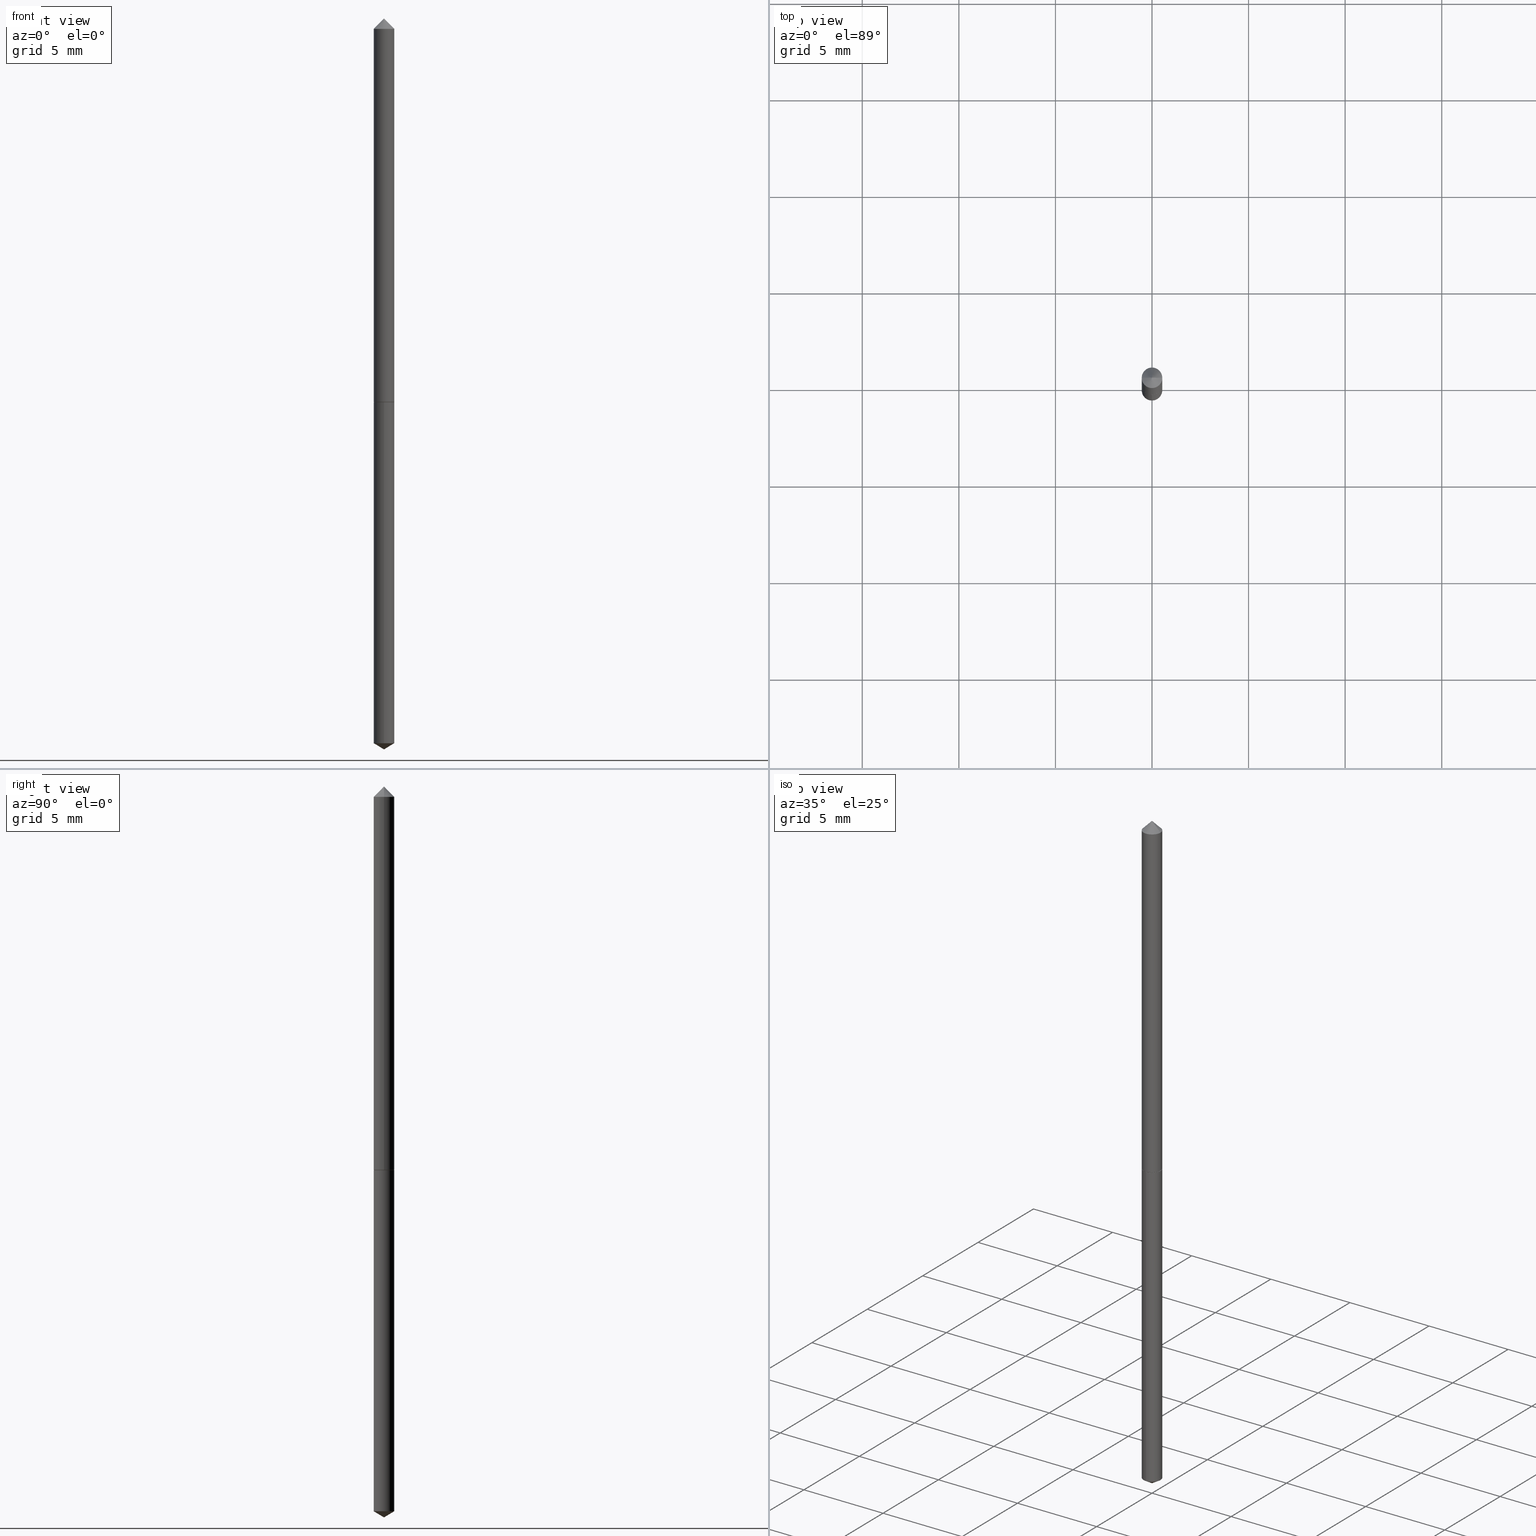
[diagram: canonical four-view strip — front | top / right | iso, engineering-drawing reading convention]
A machine part, canonical four-view strip (front | top / right | iso — engineering-drawing reading convention). The complete STEP part file that produces these views, byte-faithful:
ISO-10303-21;
HEADER;
FILE_DESCRIPTION (( 'STEP AP203' ),
    '1' );
FILE_NAME ('51058.STEP',
    '2024-04-22T18:20:39',
    ( '' ),
    ( '' ),
    'SwSTEP 2.0',
    'SolidWorks 2023',
    '' );
FILE_SCHEMA (( 'CONFIG_CONTROL_DESIGN' ));
ENDSEC;

DATA;
#1 = PERSON_AND_ORGANIZATION_ROLE ( 'creator' ) ;
#2 = CC_DESIGN_PERSON_AND_ORGANIZATION_ASSIGNMENT ( #196, #143, ( #130 ) ) ;
#3 = CIRCLE ( 'NONE', #35, 0.02100000000000000824 ) ;
#4 = DIRECTION ( 'NONE',  ( -2.445556924362238958E-29, 3.491355148598159938E-15, 1.000000000000000000 ) ) ;
#5 = EDGE_CURVE ( 'NONE', #267, #99, #325, .T. ) ;
#6 =( GEOMETRIC_REPRESENTATION_CONTEXT ( 3 ) GLOBAL_UNCERTAINTY_ASSIGNED_CONTEXT ( ( #187 ) ) GLOBAL_UNIT_ASSIGNED_CONTEXT ( ( #27, #57, #357 ) ) REPRESENTATION_CONTEXT ( 'NONE', 'WORKASPACE' ) );
#7 = DIRECTION ( 'NONE',  ( -2.445468806185136597E-29, 3.491481338843145583E-15, 1.000000000000000000 ) ) ;
#8 = ORIENTED_EDGE ( 'NONE', *, *, #126, .T. ) ;
#9 = DIRECTION ( 'NONE',  ( -0.7071067811864297781, 7.493145998869928175E-15, 0.7071067811866651454 ) ) ;
#10 = ORIENTED_EDGE ( 'NONE', *, *, #257, .F. ) ;
#11 = ORIENTED_EDGE ( 'NONE', *, *, #76, .T. ) ;
#12 = DIRECTION ( 'NONE',  ( 2.445468806185136597E-29, -3.491481338843145583E-15, -1.000000000000000000 ) ) ;
#13 = FACE_OUTER_BOUND ( 'NONE', #191, .T. ) ;
#14 = AXIS2_PLACEMENT_3D ( 'NONE', #321, #44, #297 ) ;
#15 = DIRECTION ( 'NONE',  ( 2.445556924362238958E-29, -3.491355148598159543E-15, -1.000000000000000000 ) ) ;
#16 = VECTOR ( 'NONE', #219, 39.37007874015748143 ) ;
#17 = ADVANCED_FACE ( 'NONE', ( #141 ), #248, .T. ) ;
#18 = DIRECTION ( 'NONE',  ( 1.000000000000000000, -6.982962677686276177E-15, 0.000000000000000000 ) ) ;
#19 = APPROVAL_DATE_TIME ( #242, #197 ) ;
#20 = DIRECTION ( 'NONE',  ( -2.445556924362238958E-29, 3.491355148598159938E-15, 1.000000000000000000 ) ) ;
#21 = ADVANCED_FACE ( 'NONE', ( #89 ), #106, .F. ) ;
#22 = CARTESIAN_POINT ( 'NONE',  ( 1.936811294498628434E-29, -2.765253220363771699E-15, -0.7920000000000001483 ) ) ;
#23 = CARTESIAN_POINT ( 'NONE',  ( -1.466422162313922235E-16, -0.02100000000000276992, -0.7920000000000000373 ) ) ;
#24 = AXIS2_PLACEMENT_3D ( 'NONE', #163, #138, #328 ) ;
#25 = LOCAL_TIME ( 14, 20, 39.00000000000000000, #307 ) ;
#26 = VECTOR ( 'NONE', #98, 39.37007874015748143 ) ;
#27 =( CONVERSION_BASED_UNIT ( 'INCH', #301 ) LENGTH_UNIT ( ) NAMED_UNIT ( #117 ) );
#28 = CARTESIAN_POINT ( 'NONE',  ( 3.668336610488116959E-29, -5.237032722897240104E-15, -1.500000000000000222 ) ) ;
#29 = DIRECTION ( 'NONE',  ( 0.7071067811864297781, -2.468850131081024071E-15, 0.7071067811866651454 ) ) ;
#30 = DATE_TIME_ROLE ( 'creation_date' ) ;
#31 = VECTOR ( 'NONE', #249, 39.37007874015748143 ) ;
#32 = DIRECTION ( 'NONE',  ( -2.445556924362238958E-29, 3.491355148598159938E-15, 1.000000000000000000 ) ) ;
#33 = CIRCLE ( 'NONE', #226, 0.02100000000000000477 ) ;
#34 = APPLICATION_PROTOCOL_DEFINITION ( 'international standard', 'config_control_design', 1994, #79 ) ;
#35 = AXIS2_PLACEMENT_3D ( 'NONE', #134, #157, #263 ) ;
#36 = ADVANCED_FACE ( 'NONE', ( #77 ), #114, .T. ) ;
#37 = DIRECTION ( 'NONE',  ( 0.000000000000000000, 0.000000000000000000, 1.000000000000000000 ) ) ;
#38 = VERTEX_POINT ( 'NONE', #190 ) ;
#39 = DIRECTION ( 'NONE',  ( -2.445556924362238958E-29, 3.491355148598159938E-15, 1.000000000000000000 ) ) ;
#40 = APPROVAL ( #201, 'UNSPECIFIED' ) ;
#41 = APPROVAL_STATUS ( 'not_yet_approved' ) ;
#42 = ORIENTED_EDGE ( 'NONE', *, *, #349, .F. ) ;
#43 = ORIENTED_EDGE ( 'NONE', *, *, #90, .F. ) ;
#44 = DIRECTION ( 'NONE',  ( -2.445468806185136597E-29, 3.491481338843145583E-15, 1.000000000000000000 ) ) ;
#45 = CALENDAR_DATE ( 2024, 22, 4 ) ;
#46 = DIRECTION ( 'NONE',  ( -6.982962677686266711E-15, -1.000000000000000000, 3.468864327941518878E-15 ) ) ;
#47 = EDGE_LOOP ( 'NONE', ( #189, #104 ) ) ;
#48 = SECURITY_CLASSIFICATION ( '', '', #94 ) ;
#49 = AXIS2_PLACEMENT_3D ( 'NONE', #284, #12, #259 ) ;
#50 = DIRECTION ( 'NONE',  ( 0.7071067811865453523, -7.319954787623248157E-15, -0.7071067811865496822 ) ) ;
#51 = EDGE_CURVE ( 'NONE', #267, #346, #294, .T. ) ;
#52 = ORIENTED_EDGE ( 'NONE', *, *, #69, .F. ) ;
#53 = APPROVAL ( #311, 'UNSPECIFIED' ) ;
#54 = PERSON ( 'UNSPECIFIED', 'UNSPECIFIED', 'UNSPECIFIED', ('UNSPECIFIED'), ('UNSPECIFIED'), ('UNSPECIFIED') ) ;
#55 = FACE_OUTER_BOUND ( 'NONE', #355, .T. ) ;
#56 = DIRECTION ( 'NONE',  ( 1.000000000000000000, -6.982962677686276177E-15, 0.000000000000000000 ) ) ;
#57 =( NAMED_UNIT ( * ) PLANE_ANGLE_UNIT ( ) SI_UNIT ( $, .RADIAN. ) );
#58 = DIRECTION ( 'NONE',  ( -6.982962677686265133E-15, -1.000000000000000000, 0.000000000000000000 ) ) ;
#59 =( LENGTH_UNIT ( ) NAMED_UNIT ( * ) SI_UNIT ( $, .METRE. ) );
#60 = EDGE_CURVE ( 'NONE', #292, #238, #86, .T. ) ;
#61 = CARTESIAN_POINT ( 'NONE',  ( 0.02100000000000010192, -2.910149695925762806E-15, -0.7915000000000002034 ) ) ;
#62 = CONICAL_SURFACE ( 'NONE', #250, 0.02100000000000000824, 0.7853981633974452814 ) ;
#63 = AXIS2_PLACEMENT_3D ( 'NONE', #84, #225, #222 ) ;
#64 = ORIENTED_EDGE ( 'NONE', *, *, #204, .T. ) ;
#65 = ORIENTED_EDGE ( 'NONE', *, *, #60, .T. ) ;
#66 = MANIFOLD_SOLID_BREP ( 'Body-Move/Copy2[1]', #97 ) ;
#67 = LOCAL_TIME ( 14, 20, 39.00000000000000000, #247 ) ;
#68 = CARTESIAN_POINT ( 'NONE',  ( 0.000000000000000000, 0.000000000000000000, 0.000000000000000000 ) ) ;
#69 = EDGE_CURVE ( 'NONE', #38, #346, #109, .T. ) ;
#70 = DATE_TIME_ROLE ( 'classification_date' ) ;
#71 = EDGE_LOOP ( 'NONE', ( #356, #288 ) ) ;
#72 = ORGANIZATION ( 'UNSPECIFIED', 'UNSPECIFIED', '' ) ;
#73 = PERSON_AND_ORGANIZATION_ROLE ( 'design_owner' ) ;
#74 = ORIENTED_EDGE ( 'NONE', *, *, #51, .F. ) ;
#75 = CARTESIAN_POINT ( 'NONE',  ( -0.02100000000000000824, 3.753342439256262871E-17, -0.03125000000000020817 ) ) ;
#76 = EDGE_CURVE ( 'NONE', #348, #165, #326, .T. ) ;
#77 = FACE_OUTER_BOUND ( 'NONE', #185, .T. ) ;
#78 = ORIENTED_EDGE ( 'NONE', *, *, #5, .T. ) ;
#79 = APPLICATION_CONTEXT ( 'configuration controlled 3d designs of mechanical parts and assemblies' ) ;
#80 = DIRECTION ( 'NONE',  ( -2.445556924362238958E-29, 3.491355148598159938E-15, 1.000000000000000000 ) ) ;
#81 = CARTESIAN_POINT ( 'NONE',  ( 1.936811294498628434E-29, -2.765253220363771699E-15, -0.7920000000000001483 ) ) ;
#82 = CIRCLE ( 'NONE', #286, 0.02100000000000010192 ) ;
#83 = DIRECTION ( 'NONE',  ( 1.000000000000000000, -6.982962677686276966E-15, 0.000000000000000000 ) ) ;
#84 = CARTESIAN_POINT ( 'NONE',  ( 1.936811294498628714E-29, -2.765253220363772093E-15, -0.7920000000000003704 ) ) ;
#85 = CARTESIAN_POINT ( 'NONE',  ( 0.02100000000000000824, -2.557510080702606759E-16, -0.03125000000000020817 ) ) ;
#86 = LINE ( 'NONE', #28, #31 ) ;
#87 = DATE_AND_TIME ( #306, #351 ) ;
#88 = PERSON_AND_ORGANIZATION ( #54, #72 ) ;
#89 = FACE_OUTER_BOUND ( 'NONE', #47, .T. ) ;
#90 = EDGE_CURVE ( 'NONE', #186, #99, #221, .T. ) ;
#91 = COORDINATED_UNIVERSAL_TIME_OFFSET ( 5, 0, .BEHIND. ) ;
#92 = EDGE_CURVE ( 'NONE', #348, #238, #233, .T. ) ;
#93 = EDGE_LOOP ( 'NONE', ( #262, #315, #295 ) ) ;
#94 = SECURITY_CLASSIFICATION_LEVEL ( 'unclassified' ) ;
#95 = FACE_OUTER_BOUND ( 'NONE', #93, .T. ) ;
#96 = CC_DESIGN_APPROVAL ( #53, ( #48 ) ) ;
#97 = CLOSED_SHELL ( 'NONE', ( #161, #227, #120, #17, #231 ) ) ;
#98 = DIRECTION ( 'NONE',  ( -5.985567269335977567E-15, -0.8571673007021154422, 0.5150380749100489375 ) ) ;
#99 = VERTEX_POINT ( 'NONE', #168 ) ;
#100 = CARTESIAN_POINT ( 'NONE',  ( -0.02050000000000009454, -2.616942732358839831E-15, -0.7920000000000003704 ) ) ;
#101 = ORIENTED_EDGE ( 'NONE', *, *, #92, .T. ) ;
#102 = CYLINDRICAL_SURFACE ( 'NONE', #14, 0.02100000000000005335 ) ;
#103 = VECTOR ( 'NONE', #113, 39.37007874015748143 ) ;
#104 = ORIENTED_EDGE ( 'NONE', *, *, #172, .F. ) ;
#105 = CARTESIAN_POINT ( 'NONE',  ( -0.02100000000000010192, -2.614293505184728629E-15, -0.7915000000000002034 ) ) ;
#106 = PLANE ( 'NONE',  #312 ) ;
#107 = ORIENTED_EDGE ( 'NONE', *, *, #274, .F. ) ;
#108 = APPROVAL_ROLE ( '' ) ;
#109 = LINE ( 'NONE', #360, #16 ) ;
#110 = DIRECTION ( 'NONE',  ( -6.982962677686265133E-15, -1.000000000000000000, 6.504399984914910847E-15 ) ) ;
#111 = DIRECTION ( 'NONE',  ( 1.000000000000000000, -6.982962677686267499E-15, 4.876176775795936353E-29 ) ) ;
#112 = AXIS2_PLACEMENT_3D ( 'NONE', #68, #37, #207 ) ;
#113 = DIRECTION ( 'NONE',  ( -2.445556924362238958E-29, 3.491355148598159543E-15, 1.000000000000000000 ) ) ;
#114 = CONICAL_SURFACE ( 'NONE', #194, 0.02100000000000010192, 0.7853981633972818566 ) ;
#115 = EDGE_CURVE ( 'NONE', #186, #38, #82, .T. ) ;
#116 = DIRECTION ( 'NONE',  ( -2.445556924362238958E-29, 3.491355148598159543E-15, 1.000000000000000000 ) ) ;
#117 = DIMENSIONAL_EXPONENTS ( 1.000000000000000000, 0.000000000000000000, 0.000000000000000000, 0.000000000000000000, 0.000000000000000000, 0.000000000000000000, 0.000000000000000000 ) ;
#118 = DIRECTION ( 'NONE',  ( -2.438088387897960049E-29, 3.491481338843145188E-15, 1.000000000000000000 ) ) ;
#119 = PRODUCT_DEFINITION_FORMATION_WITH_SPECIFIED_SOURCE ( 'ANY', '', #174, .NOT_KNOWN. ) ;
#120 = ADVANCED_FACE ( 'NONE', ( #95 ), #145, .T. ) ;
#121 = CARTESIAN_POINT ( 'NONE',  ( 3.637407381150866081E-29, -5.193078491438802462E-15, -1.487381927000421600 ) ) ;
#122 = VECTOR ( 'NONE', #50, 39.37007874015748143 ) ;
#123 = CARTESIAN_POINT ( 'NONE',  ( -9.261350307873161737E-28, 1.322177944445925115E-13, 37.87007874015748143 ) ) ;
#124 = ADVANCED_BREP_SHAPE_REPRESENTATION ( '51058', ( #66, #308, #112 ), #6 ) ;
#125 = DIRECTION ( 'NONE',  ( -6.982962677686266711E-15, -1.000000000000000000, 3.468864327941518878E-15 ) ) ;
#126 = EDGE_CURVE ( 'NONE', #38, #186, #327, .T. ) ;
#127 = CARTESIAN_POINT ( 'NONE',  ( 1.492139745096575085E-16, 0.02099999999999723616, -0.7920000000000003704 ) ) ;
#128 = ORIENTED_EDGE ( 'NONE', *, *, #115, .T. ) ;
#129 = DIRECTION ( 'NONE',  ( 1.000000000000000000, -6.982962677686276177E-15, 0.000000000000000000 ) ) ;
#130 = PRODUCT_DEFINITION ( 'UNKNOWN', '', #119, #246 ) ;
#131 = FACE_OUTER_BOUND ( 'NONE', #162, .T. ) ;
#132 = ORIENTED_EDGE ( 'NONE', *, *, #313, .F. ) ;
#133 = PERSON_AND_ORGANIZATION ( #54, #72 ) ;
#134 = CARTESIAN_POINT ( 'NONE',  ( 7.642090019328602662E-31, -1.091087918388490267E-16, -0.03125000000000020817 ) ) ;
#135 = VERTEX_POINT ( 'NONE', #100 ) ;
#136 = ORIENTED_EDGE ( 'NONE', *, *, #126, .F. ) ;
#137 = LINE ( 'NONE', #105, #275 ) ;
#138 = DIRECTION ( 'NONE',  ( -2.445468806185136597E-29, 3.491481338843145583E-15, 1.000000000000000000 ) ) ;
#139 = CARTESIAN_POINT ( 'NONE',  ( 1.492139745096404000E-16, 0.02099999999999723616, -0.7920000000000003704 ) ) ;
#140 = APPLICATION_CONTEXT ( 'configuration controlled 3d designs of mechanical parts and assemblies' ) ;
#141 = FACE_OUTER_BOUND ( 'NONE', #211, .T. ) ;
#142 = CARTESIAN_POINT ( 'NONE',  ( 0.02050000000000009454, -2.908403955256341697E-15, -0.7920000000000003704 ) ) ;
#143 = PERSON_AND_ORGANIZATION_ROLE ( 'creator' ) ;
#144 = AXIS2_PLACEMENT_3D ( 'NONE', #354, #293, #111 ) ;
#145 = CONICAL_SURFACE ( 'NONE', #181, 65.52281426576985268, 1.029744258676664082 ) ;
#146 = APPROVAL_ROLE ( '' ) ;
#147 = CARTESIAN_POINT ( 'NONE',  ( -0.02100000000000010192, -2.614293505184728629E-15, -0.7915000000000002034 ) ) ;
#148 = CALENDAR_DATE ( 2024, 22, 4 ) ;
#149 = DIRECTION ( 'NONE',  ( -6.982962677686265133E-15, -1.000000000000000000, 0.000000000000000000 ) ) ;
#150 = CIRCLE ( 'NONE', #24, 0.02100000000000000824 ) ;
#151 = CLOSED_SHELL ( 'NONE', ( #300, #279, #244, #21, #36, #335, #153 ) ) ;
#152 = APPROVAL_PERSON_ORGANIZATION ( #158, #197, #188 ) ;
#153 = ADVANCED_FACE ( 'NONE', ( #318 ), #209, .T. ) ;
#154 = PERSON_AND_ORGANIZATION ( #54, #72 ) ;
#155 = VERTEX_POINT ( 'NONE', #127 ) ;
#156 = VECTOR ( 'NONE', #29, 39.37007874015748854 ) ;
#157 = DIRECTION ( 'NONE',  ( -2.445468806185136597E-29, 3.491481338843145583E-15, 1.000000000000000000 ) ) ;
#158 = PERSON_AND_ORGANIZATION ( #54, #72 ) ;
#159 = ORIENTED_EDGE ( 'NONE', *, *, #115, .F. ) ;
#160 = PLANE ( 'NONE',  #192 ) ;
#161 = ADVANCED_FACE ( 'NONE', ( #352 ), #342, .T. ) ;
#162 = EDGE_LOOP ( 'NONE', ( #265, #65, #350 ) ) ;
#163 = CARTESIAN_POINT ( 'NONE',  ( 7.642090019328602662E-31, -1.091087918388490267E-16, -0.03125000000000020817 ) ) ;
#164 = VECTOR ( 'NONE', #116, 39.37007874015748143 ) ;
#165 = VERTEX_POINT ( 'NONE', #180 ) ;
#166 = DIRECTION ( 'NONE',  ( -6.982962677686265133E-15, -1.000000000000000000, 6.504399984914910847E-15 ) ) ;
#167 = CARTESIAN_POINT ( 'NONE',  ( 1.936811294498628434E-29, -2.765253220363771699E-15, -0.7920000000000001483 ) ) ;
#168 = CARTESIAN_POINT ( 'NONE',  ( -0.02100000000000000824, -1.287094161256977096E-15, -0.03125000000000020817 ) ) ;
#169 = LOCAL_TIME ( 14, 20, 39.00000000000000000, #199 ) ;
#170 = AXIS2_PLACEMENT_3D ( 'NONE', #121, #332, #149 ) ;
#171 = DIRECTION ( 'NONE',  ( -2.445468806185136877E-29, 3.491481338843145188E-15, 1.000000000000000000 ) ) ;
#172 = EDGE_CURVE ( 'NONE', #135, #320, #261, .T. ) ;
#173 = CC_DESIGN_DATE_AND_TIME_ASSIGNMENT ( #344, #70, ( #48 ) ) ;
#174 = PRODUCT ( '51058', '51058', '', ( #236 ) ) ;
#175 = AXIS2_PLACEMENT_3D ( 'NONE', #210, #7, #129 ) ;
#176 = EDGE_CURVE ( 'NONE', #320, #38, #252, .T. ) ;
#177 = APPROVAL_DATE_TIME ( #202, #40 ) ;
#178 = CONICAL_SURFACE ( 'NONE', #359, 65.52281426576985268, 1.029744258676664082 ) ;
#179 = CC_DESIGN_PERSON_AND_ORGANIZATION_ASSIGNMENT ( #255, #1, ( #119 ) ) ;
#180 = CARTESIAN_POINT ( 'NONE',  ( -1.466422162313922235E-16, -0.02100000000000276992, -0.7920000000000000373 ) ) ;
#181 = AXIS2_PLACEMENT_3D ( 'NONE', #123, #4, #125 ) ;
#182 = ORIENTED_EDGE ( 'NONE', *, *, #268, .F. ) ;
#183 = DIRECTION ( 'NONE',  ( -2.445556924362238958E-29, 3.491355148598159938E-15, 1.000000000000000000 ) ) ;
#184 = CIRCLE ( 'NONE', #205, 0.02100000000000000477 ) ;
#185 = EDGE_LOOP ( 'NONE', ( #343, #353, #304, #159 ) ) ;
#186 = VERTEX_POINT ( 'NONE', #147 ) ;
#187 = UNCERTAINTY_MEASURE_WITH_UNIT (LENGTH_MEASURE( 1.000000000000000082E-05 ), #27, 'distance_accuracy_value', 'NONE');
#188 = APPROVAL_ROLE ( '' ) ;
#189 = ORIENTED_EDGE ( 'NONE', *, *, #364, .F. ) ;
#190 = CARTESIAN_POINT ( 'NONE',  ( 0.02100000000000010192, -2.910149695925762806E-15, -0.7915000000000002034 ) ) ;
#191 = EDGE_LOOP ( 'NONE', ( #43, #128, #287, #107 ) ) ;
#192 = AXIS2_PLACEMENT_3D ( 'NONE', #81, #15, #347 ) ;
#193 = CARTESIAN_POINT ( 'NONE',  ( -1.466422162313752630E-16, -0.02100000000000519854, -1.487381927000421600 ) ) ;
#194 = AXIS2_PLACEMENT_3D ( 'NONE', #223, #278, #56 ) ;
#195 = LINE ( 'NONE', #139, #103 ) ;
#196 = PERSON_AND_ORGANIZATION ( #54, #72 ) ;
#197 = APPROVAL ( #41, 'UNSPECIFIED' ) ;
#198 = CARTESIAN_POINT ( 'NONE',  ( 1.936811294498628714E-29, -2.765253220363772093E-15, -0.7920000000000003704 ) ) ;
#199 = COORDINATED_UNIVERSAL_TIME_OFFSET ( 5, 0, .BEHIND. ) ;
#200 = CARTESIAN_POINT ( 'NONE',  ( -0.02100000000000005335, 1.492139745096214181E-16, -1.032976368953532787E-30 ) ) ;
#201 = APPROVAL_STATUS ( 'not_yet_approved' ) ;
#202 = DATE_AND_TIME ( #148, #25 ) ;
#203 = APPROVAL_DATE_TIME ( #87, #53 ) ;
#204 = EDGE_CURVE ( 'NONE', #238, #348, #361, .T. ) ;
#205 = AXIS2_PLACEMENT_3D ( 'NONE', #298, #183, #166 ) ;
#206 = ORIENTED_EDGE ( 'NONE', *, *, #349, .T. ) ;
#207 = DIRECTION ( 'NONE',  ( 1.000000000000000000, 0.000000000000000000, 0.000000000000000000 ) ) ;
#208 = CC_DESIGN_APPROVAL ( #197, ( #130 ) ) ;
#209 = CONICAL_SURFACE ( 'NONE', #49, 0.02100000000000000824, 0.7853981633974452814 ) ;
#210 = CARTESIAN_POINT ( 'NONE',  ( 1.935588560095536193E-29, -2.763507479694350590E-15, -0.7915000000000002034 ) ) ;
#211 = EDGE_LOOP ( 'NONE', ( #10, #64, #11, #132 ) ) ;
#212 = CONICAL_SURFACE ( 'NONE', #229, 0.02100000000000010192, 0.7853981633972818566 ) ;
#213 = CARTESIAN_POINT ( 'NONE',  ( 1.936811294498628434E-29, -2.765253220363771699E-15, -0.7920000000000001483 ) ) ;
#214 = ORIENTED_EDGE ( 'NONE', *, *, #176, .F. ) ;
#215 = FACE_OUTER_BOUND ( 'NONE', #310, .T. ) ;
#216 = ORIENTED_EDGE ( 'NONE', *, *, #235, .T. ) ;
#217 = CARTESIAN_POINT ( 'NONE',  ( 1.935588560095536193E-29, -2.763507479694350590E-15, -0.7915000000000002034 ) ) ;
#218 = CARTESIAN_POINT ( 'NONE',  ( -1.748189418683981032E-29, -8.042383978856665644E-15, -0.7920000000000001483 ) ) ;
#219 = DIRECTION ( 'NONE',  ( -2.445468806185136877E-29, 3.491481338843145188E-15, 1.000000000000000000 ) ) ;
#220 = CARTESIAN_POINT ( 'NONE',  ( 2.506605526339781470E-31, -3.578768372314248100E-17, -0.01025000000000006635 ) ) ;
#221 = LINE ( 'NONE', #200, #363 ) ;
#222 = DIRECTION ( 'NONE',  ( 1.000000000000000000, -6.982962677686276966E-15, 0.000000000000000000 ) ) ;
#223 = CARTESIAN_POINT ( 'NONE',  ( 1.935588560095536193E-29, -2.763507479694350590E-15, -0.7915000000000002034 ) ) ;
#224 = EDGE_CURVE ( 'NONE', #292, #348, #258, .T. ) ;
#225 = DIRECTION ( 'NONE',  ( -2.445468806185136597E-29, 3.491481338843145583E-15, 1.000000000000000000 ) ) ;
#226 = AXIS2_PLACEMENT_3D ( 'NONE', #22, #80, #276 ) ;
#227 = ADVANCED_FACE ( 'NONE', ( #131 ), #178, .T. ) ;
#228 = APPROVAL_PERSON_ORGANIZATION ( #133, #53, #108 ) ;
#229 = AXIS2_PLACEMENT_3D ( 'NONE', #217, #329, #18 ) ;
#230 = PERSON_AND_ORGANIZATION ( #54, #72 ) ;
#231 = ADVANCED_FACE ( 'NONE', ( #241 ), #160, .F. ) ;
#232 = AXIS2_PLACEMENT_3D ( 'NONE', #198, #245, #83 ) ;
#233 = CIRCLE ( 'NONE', #270, 0.02100000000000000477 ) ;
#234 = ORIENTED_EDGE ( 'NONE', *, *, #51, .T. ) ;
#235 = EDGE_CURVE ( 'NONE', #135, #186, #137, .T. ) ;
#236 = MECHANICAL_CONTEXT ( 'NONE', #140, 'mechanical' ) ;
#237 = EDGE_LOOP ( 'NONE', ( #324, #216, #136, #214 ) ) ;
#238 = VERTEX_POINT ( 'NONE', #266 ) ;
#239 = EDGE_LOOP ( 'NONE', ( #101, #289, #182, #336 ) ) ;
#240 = CYLINDRICAL_SURFACE ( 'NONE', #144, 0.02100000000000005335 ) ;
#241 = FACE_OUTER_BOUND ( 'NONE', #71, .T. ) ;
#242 = DATE_AND_TIME ( #291, #67 ) ;
#243 = ORIENTED_EDGE ( 'NONE', *, *, #274, .T. ) ;
#244 = ADVANCED_FACE ( 'NONE', ( #272 ), #212, .T. ) ;
#245 = DIRECTION ( 'NONE',  ( -2.445468806185136597E-29, 3.491481338843145583E-15, 1.000000000000000000 ) ) ;
#246 = DESIGN_CONTEXT ( 'detailed design', #79, 'design' ) ;
#247 = COORDINATED_UNIVERSAL_TIME_OFFSET ( 5, 0, .BEHIND. ) ;
#248 = CYLINDRICAL_SURFACE ( 'NONE', #340, 0.02100000000000000477 ) ;
#249 = DIRECTION ( 'NONE',  ( 6.090539988449815512E-15, 0.8571673007021189949, 0.5150380749100429423 ) ) ;
#250 = AXIS2_PLACEMENT_3D ( 'NONE', #290, #303, #323 ) ;
#251 = CARTESIAN_POINT ( 'NONE',  ( 3.668335386543358857E-29, -5.237032722897240104E-15, -1.500000000000000222 ) ) ;
#252 = LINE ( 'NONE', #61, #156 ) ;
#253 = DIRECTION ( 'NONE',  ( 1.000000000000000000, -6.982962677686265922E-15, 4.876176775795935793E-29 ) ) ;
#254 = LOCAL_TIME ( 14, 20, 39.00000000000000000, #314 ) ;
#255 = PERSON_AND_ORGANIZATION ( #54, #72 ) ;
#256 = DIRECTION ( 'NONE',  ( -6.982962677686265133E-15, -1.000000000000000000, 6.504399984914910847E-15 ) ) ;
#257 = EDGE_CURVE ( 'NONE', #238, #155, #195, .T. ) ;
#258 = LINE ( 'NONE', #339, #26 ) ;
#259 = DIRECTION ( 'NONE',  ( -1.000000000000000000, 6.982962677686265922E-15, 0.000000000000000000 ) ) ;
#260 = APPLICATION_PROTOCOL_DEFINITION ( 'international standard', 'config_control_design', 1994, #140 ) ;
#261 = CIRCLE ( 'NONE', #63, 0.02050000000000009454 ) ;
#262 = ORIENTED_EDGE ( 'NONE', *, *, #60, .F. ) ;
#263 = DIRECTION ( 'NONE',  ( 1.000000000000000000, -6.982962677686265922E-15, 0.000000000000000000 ) ) ;
#264 = ORIENTED_EDGE ( 'NONE', *, *, #90, .T. ) ;
#265 = ORIENTED_EDGE ( 'NONE', *, *, #224, .F. ) ;
#266 = CARTESIAN_POINT ( 'NONE',  ( 1.492139745096574345E-16, 0.02099999999999481101, -1.487381927000421600 ) ) ;
#267 = VERTEX_POINT ( 'NONE', #220 ) ;
#268 = EDGE_CURVE ( 'NONE', #165, #155, #184, .T. ) ;
#269 = CARTESIAN_POINT ( 'NONE',  ( 1.935588560095536193E-29, -2.763507479694350590E-15, -0.7915000000000002034 ) ) ;
#270 = AXIS2_PLACEMENT_3D ( 'NONE', #331, #302, #58 ) ;
#271 = PERSON_AND_ORGANIZATION_ROLE ( 'classification_officer' ) ;
#272 = FACE_OUTER_BOUND ( 'NONE', #237, .T. ) ;
#273 = ORIENTED_EDGE ( 'NONE', *, *, #5, .F. ) ;
#274 = EDGE_CURVE ( 'NONE', #99, #346, #3, .T. ) ;
#275 = VECTOR ( 'NONE', #9, 39.37007874015748854 ) ;
#276 = DIRECTION ( 'NONE',  ( -6.982962677686265133E-15, -1.000000000000000000, 6.504399984914910847E-15 ) ) ;
#277 = DATE_AND_TIME ( #334, #169 ) ;
#278 = DIRECTION ( 'NONE',  ( -2.445468806185136597E-29, 3.491481338843145583E-15, 1.000000000000000000 ) ) ;
#279 = ADVANCED_FACE ( 'NONE', ( #55 ), #102, .T. ) ;
#280 = CC_DESIGN_SECURITY_CLASSIFICATION ( #48, ( #119 ) ) ;
#281 = PERSON_AND_ORGANIZATION ( #54, #72 ) ;
#282 = DIRECTION ( 'NONE',  ( -2.445468806185136597E-29, 3.491481338843145583E-15, 1.000000000000000000 ) ) ;
#283 = EDGE_LOOP ( 'NONE', ( #74, #78, #243 ) ) ;
#284 = CARTESIAN_POINT ( 'NONE',  ( 7.642090019328602662E-31, -1.091087918388490267E-16, -0.03125000000000020817 ) ) ;
#285 = CIRCLE ( 'NONE', #232, 0.02050000000000009454 ) ;
#286 = AXIS2_PLACEMENT_3D ( 'NONE', #269, #282, #319 ) ;
#287 = ORIENTED_EDGE ( 'NONE', *, *, #69, .T. ) ;
#288 = ORIENTED_EDGE ( 'NONE', *, *, #313, .T. ) ;
#289 = ORIENTED_EDGE ( 'NONE', *, *, #257, .T. ) ;
#290 = CARTESIAN_POINT ( 'NONE',  ( 7.642090019328602662E-31, -1.091087918388490267E-16, -0.03125000000000020817 ) ) ;
#291 = CALENDAR_DATE ( 2024, 22, 4 ) ;
#292 = VERTEX_POINT ( 'NONE', #251 ) ;
#293 = DIRECTION ( 'NONE',  ( -2.445468806185136597E-29, 3.491481338843145583E-15, 1.000000000000000000 ) ) ;
#294 = LINE ( 'NONE', #358, #122 ) ;
#295 = ORIENTED_EDGE ( 'NONE', *, *, #204, .F. ) ;
#296 = VECTOR ( 'NONE', #299, 39.37007874015748143 ) ;
#297 = DIRECTION ( 'NONE',  ( 1.000000000000000000, -6.982962677686267499E-15, 4.876176775795936353E-29 ) ) ;
#298 = CARTESIAN_POINT ( 'NONE',  ( 1.936811294498628434E-29, -2.765253220363771699E-15, -0.7920000000000001483 ) ) ;
#299 = DIRECTION ( 'NONE',  ( -0.7071067811865453523, 2.468850131082234184E-15, -0.7071067811865496822 ) ) ;
#300 = ADVANCED_FACE ( 'NONE', ( #215 ), #62, .T. ) ;
#301 = LENGTH_MEASURE_WITH_UNIT ( LENGTH_MEASURE( 0.02539999999999999897 ), #59 );
#302 = DIRECTION ( 'NONE',  ( -2.445556924362238958E-29, 3.491355148598159938E-15, 1.000000000000000000 ) ) ;
#303 = DIRECTION ( 'NONE',  ( 2.445468806185136597E-29, -3.491481338843145583E-15, -1.000000000000000000 ) ) ;
#304 = ORIENTED_EDGE ( 'NONE', *, *, #176, .T. ) ;
#305 = CC_DESIGN_APPROVAL ( #40, ( #119 ) ) ;
#306 = CALENDAR_DATE ( 2024, 22, 4 ) ;
#307 = COORDINATED_UNIVERSAL_TIME_OFFSET ( 5, 0, .BEHIND. ) ;
#308 = MANIFOLD_SOLID_BREP ( 'Body-Move/Copy2[2]', #151 ) ;
#309 = CC_DESIGN_PERSON_AND_ORGANIZATION_ASSIGNMENT ( #230, #337, ( #119 ) ) ;
#310 = EDGE_LOOP ( 'NONE', ( #273, #234, #206 ) ) ;
#311 = APPROVAL_STATUS ( 'not_yet_approved' ) ;
#312 = AXIS2_PLACEMENT_3D ( 'NONE', #218, #118, #253 ) ;
#313 = EDGE_CURVE ( 'NONE', #155, #165, #33, .T. ) ;
#314 = COORDINATED_UNIVERSAL_TIME_OFFSET ( 5, 0, .BEHIND. ) ;
#315 = ORIENTED_EDGE ( 'NONE', *, *, #224, .T. ) ;
#316 = CC_DESIGN_PERSON_AND_ORGANIZATION_ASSIGNMENT ( #281, #73, ( #174 ) ) ;
#317 = PRODUCT_RELATED_PRODUCT_CATEGORY ( 'detail', '', ( #174 ) ) ;
#318 = FACE_OUTER_BOUND ( 'NONE', #283, .T. ) ;
#319 = DIRECTION ( 'NONE',  ( 1.000000000000000000, -6.982962677686276177E-15, 0.000000000000000000 ) ) ;
#320 = VERTEX_POINT ( 'NONE', #142 ) ;
#321 = CARTESIAN_POINT ( 'NONE',  ( 0.000000000000000000, 0.000000000000000000, 0.000000000000000000 ) ) ;
#322 = AXIS2_PLACEMENT_3D ( 'NONE', #213, #32, #256 ) ;
#323 = DIRECTION ( 'NONE',  ( -1.000000000000000000, 6.982962677686265922E-15, 0.000000000000000000 ) ) ;
#324 = ORIENTED_EDGE ( 'NONE', *, *, #364, .T. ) ;
#325 = LINE ( 'NONE', #75, #296 ) ;
#326 = LINE ( 'NONE', #23, #164 ) ;
#327 = CIRCLE ( 'NONE', #175, 0.02100000000000010192 ) ;
#328 = DIRECTION ( 'NONE',  ( 1.000000000000000000, -6.982962677686265922E-15, 0.000000000000000000 ) ) ;
#329 = DIRECTION ( 'NONE',  ( -2.445468806185136597E-29, 3.491481338843145583E-15, 1.000000000000000000 ) ) ;
#330 = SHAPE_DEFINITION_REPRESENTATION ( #333, #124 ) ;
#331 = CARTESIAN_POINT ( 'NONE',  ( 3.637407381150866081E-29, -5.193078491438802462E-15, -1.487381927000421600 ) ) ;
#332 = DIRECTION ( 'NONE',  ( -2.445556924362238958E-29, 3.491355148598159938E-15, 1.000000000000000000 ) ) ;
#333 = PRODUCT_DEFINITION_SHAPE ( 'NONE', 'NONE',  #130 ) ;
#334 = CALENDAR_DATE ( 2024, 22, 4 ) ;
#335 = ADVANCED_FACE ( 'NONE', ( #13 ), #240, .T. ) ;
#336 = ORIENTED_EDGE ( 'NONE', *, *, #76, .F. ) ;
#337 = PERSON_AND_ORGANIZATION_ROLE ( 'design_supplier' ) ;
#338 = CC_DESIGN_PERSON_AND_ORGANIZATION_ASSIGNMENT ( #154, #271, ( #48 ) ) ;
#339 = CARTESIAN_POINT ( 'NONE',  ( 3.668195807350828439E-29, -5.237232608245297668E-15, -1.500000000000000222 ) ) ;
#340 = AXIS2_PLACEMENT_3D ( 'NONE', #167, #20, #110 ) ;
#341 = CC_DESIGN_DATE_AND_TIME_ASSIGNMENT ( #277, #30, ( #130 ) ) ;
#342 = CYLINDRICAL_SURFACE ( 'NONE', #322, 0.02100000000000000477 ) ;
#343 = ORIENTED_EDGE ( 'NONE', *, *, #235, .F. ) ;
#344 = DATE_AND_TIME ( #45, #254 ) ;
#345 = CARTESIAN_POINT ( 'NONE',  ( -9.261350307873161737E-28, 1.322177944445925115E-13, 37.87007874015748143 ) ) ;
#346 = VERTEX_POINT ( 'NONE', #85 ) ;
#347 = DIRECTION ( 'NONE',  ( 6.982962677686265922E-15, 1.000000000000000000, -3.491355148598159543E-15 ) ) ;
#348 = VERTEX_POINT ( 'NONE', #193 ) ;
#349 = EDGE_CURVE ( 'NONE', #346, #99, #150, .T. ) ;
#350 = ORIENTED_EDGE ( 'NONE', *, *, #92, .F. ) ;
#351 = LOCAL_TIME ( 14, 20, 39.00000000000000000, #91 ) ;
#352 = FACE_OUTER_BOUND ( 'NONE', #239, .T. ) ;
#353 = ORIENTED_EDGE ( 'NONE', *, *, #172, .T. ) ;
#354 = CARTESIAN_POINT ( 'NONE',  ( 0.000000000000000000, 0.000000000000000000, 0.000000000000000000 ) ) ;
#355 = EDGE_LOOP ( 'NONE', ( #8, #264, #42, #52 ) ) ;
#356 = ORIENTED_EDGE ( 'NONE', *, *, #268, .T. ) ;
#357 =( NAMED_UNIT ( * ) SI_UNIT ( $, .STERADIAN. ) SOLID_ANGLE_UNIT ( ) );
#358 = CARTESIAN_POINT ( 'NONE',  ( 0.02100000000000000824, -2.531792497920512769E-16, -0.03125000000000020817 ) ) ;
#359 = AXIS2_PLACEMENT_3D ( 'NONE', #345, #39, #46 ) ;
#360 = CARTESIAN_POINT ( 'NONE',  ( 0.02100000000000005335, -1.466422162314119944E-16, 1.023997122917149277E-30 ) ) ;
#361 = CIRCLE ( 'NONE', #170, 0.02100000000000000477 ) ;
#362 = APPROVAL_PERSON_ORGANIZATION ( #88, #40, #146 ) ;
#363 = VECTOR ( 'NONE', #171, 39.37007874015748143 ) ;
#364 = EDGE_CURVE ( 'NONE', #320, #135, #285, .T. ) ;
ENDSEC;
END-ISO-10303-21;
